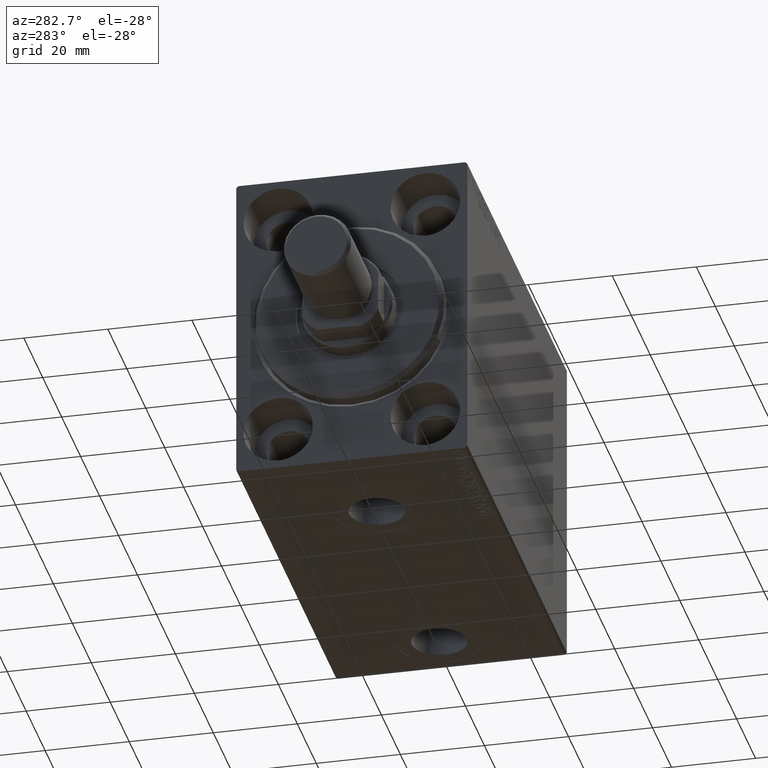
[diagram: clean part render]
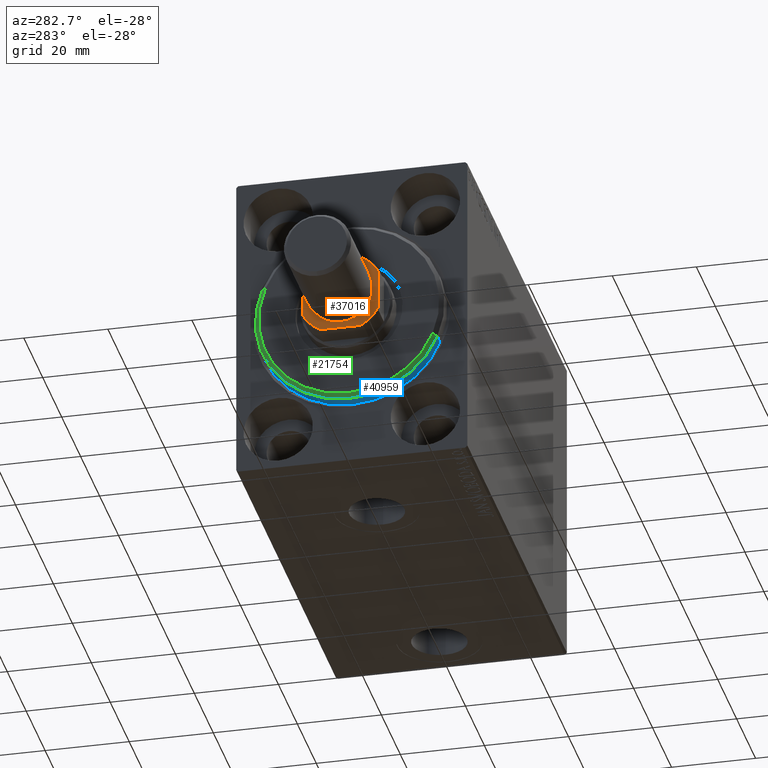
[diagram: same view with three faces highlighted in distinct colors, each labeled with its STEP entity id]
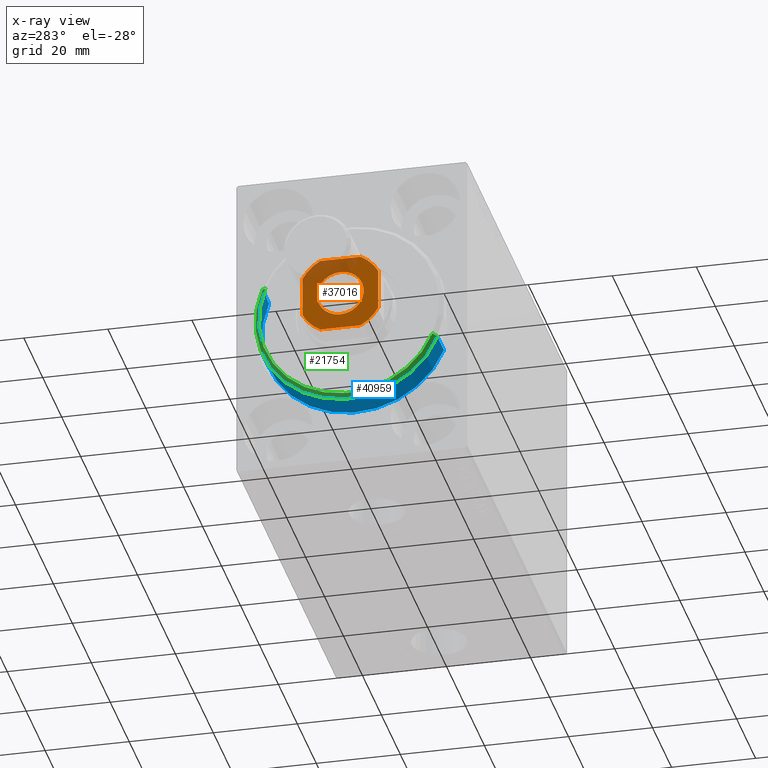
[diagram: x-ray of the same camera — body ghosted, the three highlighted faces saturated]
A machine part, auxiliary view with three faces highlighted in distinct colors.
The next image is the same camera in x-ray (body ghosted, the three faces saturated) — at least one of them is partly hidden behind the body in this view.
Their STEP definitions:

[orange] entity #37016 — the highlighted planar face has unit normal (-1, 0, 0).
#309 = ORIENTED_EDGE ( 'NONE', *, *, #2201, .T. ) ;
#393 = FACE_BOUND ( 'NONE', #10892, .T. ) ;
#777 = CARTESIAN_POINT ( 'NONE',  ( -9.000000000000001776, 8.999999999999998224, 107.0000000000000142 ) ) ;
#1172 = DIRECTION ( 'NONE',  ( 1.000000000000000000, 0.000000000000000000, 0.000000000000000000 ) ) ;
#1755 = EDGE_CURVE ( 'NONE', #30369, #35187, #31571, .T. ) ;
#2201 = EDGE_CURVE ( 'NONE', #20629, #23151, #34499, .T. ) ;
#2467 = DIRECTION ( 'NONE',  ( -0.000000000000000000, 0.000000000000000000, 1.000000000000000000 ) ) ;
#4224 = CIRCLE ( 'NONE', #25741, 5.550000000000027356 ) ;
#4485 = CIRCLE ( 'NONE', #37476, 10.19999999999999929 ) ;
#4570 = DIRECTION ( 'NONE',  ( 1.000000000000000000, 0.000000000000000000, 0.000000000000000000 ) ) ;
#6413 = CIRCLE ( 'NONE', #12168, 5.550000000000027356 ) ;
#6669 = CARTESIAN_POINT ( 'NONE',  ( 4.799999999999950084, 8.999999999999998224, 107.0000000000000142 ) ) ;
#6676 = ORIENTED_EDGE ( 'NONE', *, *, #40095, .T. ) ;
#7309 = CARTESIAN_POINT ( 'NONE',  ( 8.999999999999998224, 8.999999999999998224, 107.0000000000000142 ) ) ;
#7558 = CIRCLE ( 'NONE', #14028, 10.19999999999997442 ) ;
#7758 = CARTESIAN_POINT ( 'NONE',  ( 0.000000000000000000, 0.000000000000000000, 107.0000000000000142 ) ) ;
#8666 = CARTESIAN_POINT ( 'NONE',  ( -8.999999999999998224, -9.000000000000001776, 107.0000000000000142 ) ) ;
#9395 = EDGE_CURVE ( 'NONE', #35187, #36659, #25571, .T. ) ;
#9584 = DIRECTION ( 'NONE',  ( 1.000000000000000000, 0.000000000000000000, 0.000000000000000000 ) ) ;
#9726 = VECTOR ( 'NONE', #30680, 1000.000000000000000 ) ;
#9810 = DIRECTION ( 'NONE',  ( -0.000000000000000000, 0.000000000000000000, 1.000000000000000000 ) ) ;
#9880 = VERTEX_POINT ( 'NONE', #36212 ) ;
#10183 = EDGE_CURVE ( 'NONE', #12521, #10904, #6413, .T. ) ;
#10617 = AXIS2_PLACEMENT_3D ( 'NONE', #7758, #14729, #32230 ) ;
#10892 = EDGE_LOOP ( 'NONE', ( #25384, #6676 ) ) ;
#10904 = VERTEX_POINT ( 'NONE', #33726 ) ;
#11404 = PLANE ( 'NONE',  #33568 ) ;
#11605 = VECTOR ( 'NONE', #33321, 1000.000000000000000 ) ;
#11703 = ORIENTED_EDGE ( 'NONE', *, *, #1755, .T. ) ;
#12168 = AXIS2_PLACEMENT_3D ( 'NONE', #30883, #41447, #31562 ) ;
#12521 = VERTEX_POINT ( 'NONE', #28867 ) ;
#12594 = DIRECTION ( 'NONE',  ( 1.000000000000000000, 0.000000000000000000, 0.000000000000000000 ) ) ;
#13956 = CARTESIAN_POINT ( 'NONE',  ( -4.799999999999934097, -9.000000000000001776, 107.0000000000000142 ) ) ;
#14028 = AXIS2_PLACEMENT_3D ( 'NONE', #29655, #2467, #12594 ) ;
#14505 = DIRECTION ( 'NONE',  ( 1.927470528863119049E-16, -1.000000000000000000, 0.000000000000000000 ) ) ;
#14729 = DIRECTION ( 'NONE',  ( -0.000000000000000000, 0.000000000000000000, 1.000000000000000000 ) ) ;
#14826 = EDGE_CURVE ( 'NONE', #36659, #40819, #19252, .T. ) ;
#15451 = VECTOR ( 'NONE', #14505, 1000.000000000000000 ) ;
#15604 = EDGE_CURVE ( 'NONE', #42526, #9880, #36687, .T. ) ;
#16091 = DIRECTION ( 'NONE',  ( 1.000000000000000000, 0.000000000000000000, 0.000000000000000000 ) ) ;
#16596 = VECTOR ( 'NONE', #16091, 1000.000000000000000 ) ;
#16875 = AXIS2_PLACEMENT_3D ( 'NONE', #30696, #9810, #9584 ) ;
#18077 = CARTESIAN_POINT ( 'NONE',  ( 0.000000000000000000, 0.000000000000000000, 107.0000000000000142 ) ) ;
#18761 = EDGE_CURVE ( 'NONE', #9880, #30369, #4485, .T. ) ;
#19252 = LINE ( 'NONE', #8666, #16596 ) ;
#20629 = VERTEX_POINT ( 'NONE', #38560 ) ;
#20998 = CARTESIAN_POINT ( 'NONE',  ( 4.799999999999944755, -9.000000000000001776, 107.0000000000000142 ) ) ;
#21529 = DIRECTION ( 'NONE',  ( 1.000000000000000000, 0.000000000000000000, 0.000000000000000000 ) ) ;
#22377 = ORIENTED_EDGE ( 'NONE', *, *, #14826, .T. ) ;
#22998 = CARTESIAN_POINT ( 'NONE',  ( -9.000000000000001776, 8.999999999999998224, 107.0000000000000142 ) ) ;
#23151 = VERTEX_POINT ( 'NONE', #24077 ) ;
#24077 = CARTESIAN_POINT ( 'NONE',  ( 8.999999999999998224, 4.799999999999949196, 107.0000000000000142 ) ) ;
#24453 = EDGE_CURVE ( 'NONE', #23151, #42526, #26891, .T. ) ;
#24884 = DIRECTION ( 'NONE',  ( -0.000000000000000000, 0.000000000000000000, 1.000000000000000000 ) ) ;
#25362 = ORIENTED_EDGE ( 'NONE', *, *, #15604, .T. ) ;
#25384 = ORIENTED_EDGE ( 'NONE', *, *, #10183, .T. ) ;
#25571 = CIRCLE ( 'NONE', #10617, 10.19999999999996909 ) ;
#25741 = AXIS2_PLACEMENT_3D ( 'NONE', #42944, #35988, #1172 ) ;
#26065 = EDGE_CURVE ( 'NONE', #40819, #20629, #7558, .T. ) ;
#26522 = EDGE_LOOP ( 'NONE', ( #309, #41436, #25362, #35493, #11703, #35731, #22377, #34854 ) ) ;
#26891 = CIRCLE ( 'NONE', #16875, 10.19999999999997442 ) ;
#28867 = CARTESIAN_POINT ( 'NONE',  ( 5.550000000000027356, 0.000000000000000000, 107.0000000000000142 ) ) ;
#29655 = CARTESIAN_POINT ( 'NONE',  ( 0.000000000000000000, 0.000000000000000000, 107.0000000000000142 ) ) ;
#30369 = VERTEX_POINT ( 'NONE', #33097 ) ;
#30680 = DIRECTION ( 'NONE',  ( -1.927470528863119049E-16, 1.000000000000000000, -0.000000000000000000 ) ) ;
#30696 = CARTESIAN_POINT ( 'NONE',  ( 0.000000000000000000, 0.000000000000000000, 107.0000000000000142 ) ) ;
#30883 = CARTESIAN_POINT ( 'NONE',  ( 0.000000000000000000, 0.000000000000000000, 107.0000000000000142 ) ) ;
#30997 = CARTESIAN_POINT ( 'NONE',  ( -8.999999999999998224, -4.799999999999937650, 107.0000000000000142 ) ) ;
#31562 = DIRECTION ( 'NONE',  ( 1.000000000000000000, 0.000000000000000000, 0.000000000000000000 ) ) ;
#31571 = LINE ( 'NONE', #777, #15451 ) ;
#32230 = DIRECTION ( 'NONE',  ( 1.000000000000000000, 0.000000000000000000, 0.000000000000000000 ) ) ;
#33097 = CARTESIAN_POINT ( 'NONE',  ( -9.000000000000001776, 4.799999999999996270, 107.0000000000000142 ) ) ;
#33321 = DIRECTION ( 'NONE',  ( -1.000000000000000000, -0.000000000000000000, -0.000000000000000000 ) ) ;
#33568 = AXIS2_PLACEMENT_3D ( 'NONE', #41942, #24884, #21529 ) ;
#33726 = CARTESIAN_POINT ( 'NONE',  ( -5.550000000000027356, 6.796789735267844307E-16, 107.0000000000000142 ) ) ;
#34499 = LINE ( 'NONE', #7309, #9726 ) ;
#34854 = ORIENTED_EDGE ( 'NONE', *, *, #26065, .T. ) ;
#35187 = VERTEX_POINT ( 'NONE', #30997 ) ;
#35493 = ORIENTED_EDGE ( 'NONE', *, *, #18761, .T. ) ;
#35731 = ORIENTED_EDGE ( 'NONE', *, *, #9395, .T. ) ;
#35988 = DIRECTION ( 'NONE',  ( 0.000000000000000000, -0.000000000000000000, -1.000000000000000000 ) ) ;
#36212 = CARTESIAN_POINT ( 'NONE',  ( -4.800000000000001599, 8.999999999999998224, 107.0000000000000142 ) ) ;
#36659 = VERTEX_POINT ( 'NONE', #13956 ) ;
#36687 = LINE ( 'NONE', #22998, #11605 ) ;
#37016 = ADVANCED_FACE ( 'NONE', ( #393, #41521 ), #11404, .T. ) ;
#37476 = AXIS2_PLACEMENT_3D ( 'NONE', #18077, #38929, #4570 ) ;
#38560 = CARTESIAN_POINT ( 'NONE',  ( 9.000000000000001776, -4.799999999999946532, 107.0000000000000142 ) ) ;
#38929 = DIRECTION ( 'NONE',  ( -0.000000000000000000, 0.000000000000000000, 1.000000000000000000 ) ) ;
#40095 = EDGE_CURVE ( 'NONE', #10904, #12521, #4224, .T. ) ;
#40819 = VERTEX_POINT ( 'NONE', #20998 ) ;
#41436 = ORIENTED_EDGE ( 'NONE', *, *, #24453, .T. ) ;
#41447 = DIRECTION ( 'NONE',  ( 0.000000000000000000, -0.000000000000000000, -1.000000000000000000 ) ) ;
#41521 = FACE_OUTER_BOUND ( 'NONE', #26522, .T. ) ;
#41942 = CARTESIAN_POINT ( 'NONE',  ( 0.000000000000000000, 0.000000000000000000, 107.0000000000000142 ) ) ;
#42526 = VERTEX_POINT ( 'NONE', #6669 ) ;
#42944 = CARTESIAN_POINT ( 'NONE',  ( 0.000000000000000000, 0.000000000000000000, 107.0000000000000142 ) ) ;

[blue] entity #40959 — the highlighted cylindrical surface (partial cylindrical patch) has radius 22.5 mm, axis along (1, 0, 0).
#1335 = CARTESIAN_POINT ( 'NONE',  ( 3.000000000000000000, 0.000000000000000000, 22.50000000000000355 ) ) ;
#2769 = AXIS2_PLACEMENT_3D ( 'NONE', #18286, #42952, #35338 ) ;
#5373 = VECTOR ( 'NONE', #9939, 1000.000000000000000 ) ;
#9939 = DIRECTION ( 'NONE',  ( -1.000000000000000000, -0.000000000000000000, -0.000000000000000000 ) ) ;
#9977 = CARTESIAN_POINT ( 'NONE',  ( -5.000000000000000000, 0.000000000000000000, 22.50000000000000355 ) ) ;
#11457 = LINE ( 'NONE', #1335, #40868 ) ;
#11952 = CARTESIAN_POINT ( 'NONE',  ( -5.000000000000000000, 0.000000000000000000, 0.000000000000000000 ) ) ;
#15278 = DIRECTION ( 'NONE',  ( -1.000000000000000000, -0.000000000000000000, -0.000000000000000000 ) ) ;
#16475 = LINE ( 'NONE', #30153, #5373 ) ;
#17963 = ORIENTED_EDGE ( 'NONE', *, *, #43582, .F. ) ;
#18286 = CARTESIAN_POINT ( 'NONE',  ( 3.000000000000000000, 0.000000000000000000, 0.000000000000000000 ) ) ;
#19635 = ORIENTED_EDGE ( 'NONE', *, *, #43940, .T. ) ;
#20369 = DIRECTION ( 'NONE',  ( -1.000000000000000000, 0.000000000000000000, 0.000000000000000000 ) ) ;
#22945 = DIRECTION ( 'NONE',  ( 0.000000000000000000, 0.000000000000000000, 1.000000000000000000 ) ) ;
#25050 = EDGE_CURVE ( 'NONE', #30543, #35571, #16475, .T. ) ;
#25126 = AXIS2_PLACEMENT_3D ( 'NONE', #30237, #20369, #34055 ) ;
#27577 = CARTESIAN_POINT ( 'NONE',  ( 1.999999999999999112, 0.000000000000000000, 22.50000000000000355 ) ) ;
#28393 = ORIENTED_EDGE ( 'NONE', *, *, #32446, .F. ) ;
#28405 = AXIS2_PLACEMENT_3D ( 'NONE', #11952, #29235, #22945 ) ;
#28784 = CARTESIAN_POINT ( 'NONE',  ( 1.999999999999999112, 2.755455298081545172E-15, -22.50000000000000355 ) ) ;
#29235 = DIRECTION ( 'NONE',  ( -1.000000000000000000, 0.000000000000000000, 0.000000000000000000 ) ) ;
#29630 = EDGE_LOOP ( 'NONE', ( #19635, #34597, #28393, #17963 ) ) ;
#30153 = CARTESIAN_POINT ( 'NONE',  ( 3.000000000000000000, 2.755455298081545172E-15, -22.50000000000000355 ) ) ;
#30237 = CARTESIAN_POINT ( 'NONE',  ( 1.999999999999999112, 0.000000000000000000, 0.000000000000000000 ) ) ;
#30543 = VERTEX_POINT ( 'NONE', #28784 ) ;
#30612 = CARTESIAN_POINT ( 'NONE',  ( -5.000000000000000000, 2.755455298081545172E-15, -22.50000000000000355 ) ) ;
#31965 = FACE_OUTER_BOUND ( 'NONE', #29630, .T. ) ;
#32302 = CIRCLE ( 'NONE', #25126, 22.50000000000000355 ) ;
#32446 = EDGE_CURVE ( 'NONE', #34092, #35571, #39165, .T. ) ;
#34055 = DIRECTION ( 'NONE',  ( 0.000000000000000000, 0.000000000000000000, -1.000000000000000000 ) ) ;
#34092 = VERTEX_POINT ( 'NONE', #9977 ) ;
#34597 = ORIENTED_EDGE ( 'NONE', *, *, #25050, .T. ) ;
#35338 = DIRECTION ( 'NONE',  ( 0.000000000000000000, 0.000000000000000000, 1.000000000000000000 ) ) ;
#35571 = VERTEX_POINT ( 'NONE', #30612 ) ;
#36107 = VERTEX_POINT ( 'NONE', #27577 ) ;
#36216 = CYLINDRICAL_SURFACE ( 'NONE', #2769, 22.50000000000000355 ) ;
#39165 = CIRCLE ( 'NONE', #28405, 22.50000000000000355 ) ;
#40868 = VECTOR ( 'NONE', #15278, 1000.000000000000000 ) ;
#40959 = ADVANCED_FACE ( 'NONE', ( #31965 ), #36216, .T. ) ;
#42952 = DIRECTION ( 'NONE',  ( -1.000000000000000000, -0.000000000000000000, -0.000000000000000000 ) ) ;
#43582 = EDGE_CURVE ( 'NONE', #36107, #34092, #11457, .T. ) ;
#43940 = EDGE_CURVE ( 'NONE', #36107, #30543, #32302, .T. ) ;

[green] entity #21754 — the highlighted conical surface has half-angle 45 deg.
#3159 = AXIS2_PLACEMENT_3D ( 'NONE', #30513, #16833, #19764 ) ;
#3817 = DIRECTION ( 'NONE',  ( 0.000000000000000000, 0.000000000000000000, -1.000000000000000000 ) ) ;
#4809 = VECTOR ( 'NONE', #26186, 1000.000000000000000 ) ;
#7467 = CONICAL_SURFACE ( 'NONE', #3159, 21.50000000000000355, 0.7853981633974466137 ) ;
#7842 = CARTESIAN_POINT ( 'NONE',  ( 3.000000000000000000, 0.000000000000000000, 0.000000000000000000 ) ) ;
#8354 = DIRECTION ( 'NONE',  ( -0.7071067811865487940, 8.659560562354919300E-17, -0.7071067811865463515 ) ) ;
#9712 = ORIENTED_EDGE ( 'NONE', *, *, #36462, .T. ) ;
#16833 = DIRECTION ( 'NONE',  ( -1.000000000000000000, 0.000000000000000000, 0.000000000000000000 ) ) ;
#17531 = CARTESIAN_POINT ( 'NONE',  ( 3.000000000000000000, 2.694222958124177598E-15, -21.50000000000000355 ) ) ;
#19235 = VERTEX_POINT ( 'NONE', #17531 ) ;
#19764 = DIRECTION ( 'NONE',  ( 0.000000000000000000, 0.000000000000000000, 1.000000000000000000 ) ) ;
#20369 = DIRECTION ( 'NONE',  ( -1.000000000000000000, 0.000000000000000000, 0.000000000000000000 ) ) ;
#21754 = ADVANCED_FACE ( 'NONE', ( #22902 ), #7467, .T. ) ;
#22367 = ORIENTED_EDGE ( 'NONE', *, *, #43940, .F. ) ;
#22480 = ORIENTED_EDGE ( 'NONE', *, *, #29569, .F. ) ;
#22902 = FACE_OUTER_BOUND ( 'NONE', #25697, .T. ) ;
#25126 = AXIS2_PLACEMENT_3D ( 'NONE', #30237, #20369, #34055 ) ;
#25428 = CARTESIAN_POINT ( 'NONE',  ( 3.000000000000000000, 2.632990618166810024E-15, -21.50000000000000355 ) ) ;
#25697 = EDGE_LOOP ( 'NONE', ( #22480, #9712, #22367, #32488 ) ) ;
#26186 = DIRECTION ( 'NONE',  ( -0.7071067811865487940, 0.000000000000000000, 0.7071067811865463515 ) ) ;
#27577 = CARTESIAN_POINT ( 'NONE',  ( 1.999999999999999112, 0.000000000000000000, 22.50000000000000355 ) ) ;
#27799 = VECTOR ( 'NONE', #8354, 1000.000000000000000 ) ;
#27925 = LINE ( 'NONE', #25428, #27799 ) ;
#28512 = DIRECTION ( 'NONE',  ( 1.000000000000000000, -0.000000000000000000, 0.000000000000000000 ) ) ;
#28784 = CARTESIAN_POINT ( 'NONE',  ( 1.999999999999999112, 2.755455298081545172E-15, -22.50000000000000355 ) ) ;
#29336 = CARTESIAN_POINT ( 'NONE',  ( 3.000000000000000000, 0.000000000000000000, 21.50000000000000355 ) ) ;
#29569 = EDGE_CURVE ( 'NONE', #19235, #42745, #44124, .T. ) ;
#30237 = CARTESIAN_POINT ( 'NONE',  ( 1.999999999999999112, 0.000000000000000000, 0.000000000000000000 ) ) ;
#30513 = CARTESIAN_POINT ( 'NONE',  ( 3.000000000000000000, 0.000000000000000000, 0.000000000000000000 ) ) ;
#30543 = VERTEX_POINT ( 'NONE', #28784 ) ;
#32302 = CIRCLE ( 'NONE', #25126, 22.50000000000000355 ) ;
#32488 = ORIENTED_EDGE ( 'NONE', *, *, #35302, .F. ) ;
#34055 = DIRECTION ( 'NONE',  ( 0.000000000000000000, 0.000000000000000000, -1.000000000000000000 ) ) ;
#35302 = EDGE_CURVE ( 'NONE', #42745, #36107, #39886, .T. ) ;
#36107 = VERTEX_POINT ( 'NONE', #27577 ) ;
#36462 = EDGE_CURVE ( 'NONE', #19235, #30543, #27925, .T. ) ;
#39886 = LINE ( 'NONE', #29336, #4809 ) ;
#42745 = VERTEX_POINT ( 'NONE', #44251 ) ;
#43391 = AXIS2_PLACEMENT_3D ( 'NONE', #7842, #28512, #3817 ) ;
#43940 = EDGE_CURVE ( 'NONE', #36107, #30543, #32302, .T. ) ;
#44124 = CIRCLE ( 'NONE', #43391, 21.50000000000000355 ) ;
#44251 = CARTESIAN_POINT ( 'NONE',  ( 3.000000000000000000, 0.000000000000000000, 21.50000000000000355 ) ) ;